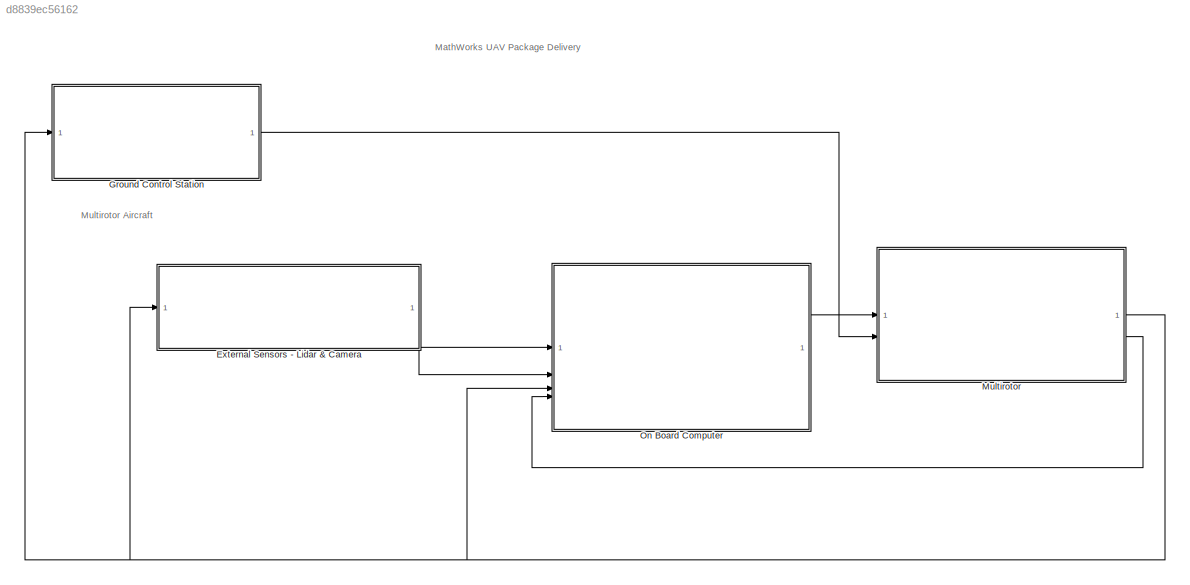
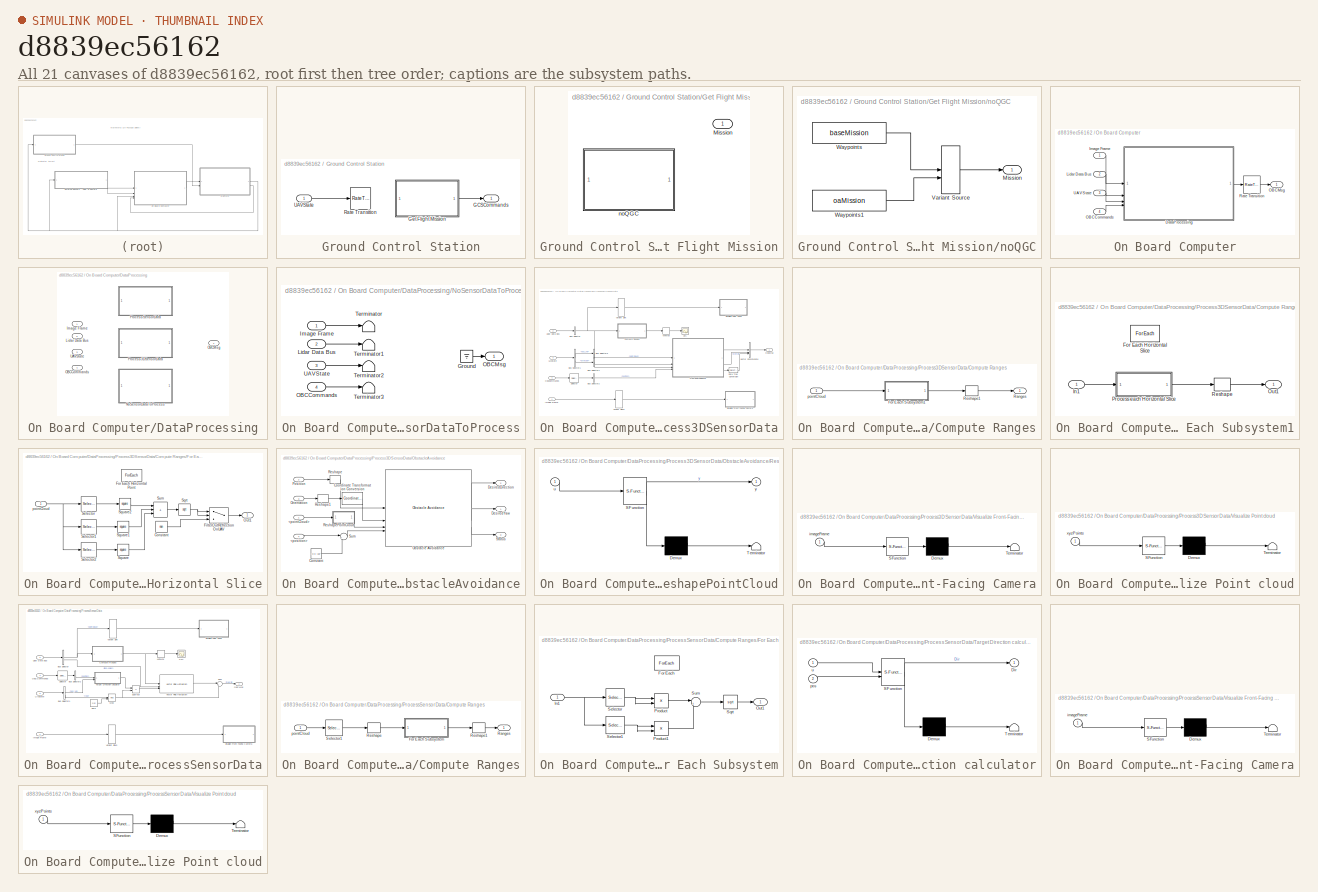
[diagram: thumbnail index - all 21 canvases of the model, root first then tree order]
MODEL slx_d8839ec56162
KIND model
CONFIG AbsTol = auto
CONFIG EnableMultiTasking = on
CONFIG FixedStep = .005
CONFIG MaxStep = auto
CONFIG MinStep = auto
CONFIG RelTol = 1e-3
CONFIG SampleTimeConstraint = Unconstrained
CONFIG SolverName = VariableStepAuto
CONFIG StartTime = 0.0
CONFIG StopTime = simTime
BLOCK [ModelReference] External Sensors - Lidar & Camera
  ModelNameDialog = photorealisticSimulationEngi.slx
  ModelReferenceVersion = 5.8
BLOCK [SubSystem] Ground Control Station
BLOCK [Outport] Ground Control Station/GCSCommands
BLOCK [SubSystem] Ground Control Station/Get Flight Mission
  Variant = on
BLOCK [Outport] Ground Control Station/Get Flight Mission/Mission 
BLOCK [SubSystem] Ground Control Station/Get Flight Mission/noQGC
  SystemSampleTime = UAVSampleTime*4
  TreatAsAtomicUnit = on
  VariantControl = useQGC==0
BLOCK [Outport] Ground Control Station/Get Flight Mission/noQGC/Mission
BLOCK [VariantSource] Ground Control Station/Get Flight Mission/noQGC/Variant Source
BLOCK [Constant] Ground Control Station/Get Flight Mission/noQGC/Waypoints
  OutDataTypeStr = Bus: uavPathManagerBus
  SampleTime = -1
  Value = baseMission
BLOCK [Constant] Ground Control Station/Get Flight Mission/noQGC/Waypoints1
  OutDataTypeStr = Bus: uavPathManagerBus
  SampleTime = -1
  Value = oaMission
BLOCK [RateTransition] Ground Control Station/Rate Transition
  OutPortSampleTime = UAVSampleTime*4
BLOCK [Inport] Ground Control Station/UAVState
  OutDataTypeStr = Bus: uavStateBus
BLOCK [ModelReference] Multirotor 
  ModelNameDialog = MultirotorModel
  ModelReferenceVersion = 6.7
  PortSchema = {"entries":[{"content":{"sides":[{"content":{"connectorIds":["In2","In1"]},"type":"ConnectorPlacement.EquallySpacedRectSide","uuid":"abf53b88-b4c0-4cc3-bb4c-819ba68ade90"},{"content":{"connectorIds":["Out1","Out2"],"side":"RIGHT"},"type":"ConnectorPlacement.EquallySpacedRectSide","uuid":"f1944fd3-3680-4558-bd6a-ffb0187ae725"},{"content":{"connectorIds":[],"side":"TOP"},"type":"ConnectorPlacement.E...<+255ch>
BLOCK [SubSystem] On Board Computer
  TreatAsAtomicUnit = on
BLOCK [SubSystem] On Board Computer/DataProcessing
  PropagateVariantConditions = on
  Variant = on
BLOCK [Inport] On Board Computer/DataProcessing/Image Frame
BLOCK [Inport] On Board Computer/DataProcessing/Lidar Data Bus 
  Port = 2
BLOCK [SubSystem] On Board Computer/DataProcessing/NoSensorDataToProcess
  VariantControl = isPhotoRealisticSim==0
BLOCK [Ground] On Board Computer/DataProcessing/NoSensorDataToProcess/Ground
BLOCK [Inport] On Board Computer/DataProcessing/NoSensorDataToProcess/Image Frame
BLOCK [Inport] On Board Computer/DataProcessing/NoSensorDataToProcess/Lidar Data Bus 
  Port = 2
BLOCK [Inport] On Board Computer/DataProcessing/NoSensorDataToProcess/OBCCommands
  Port = 4
BLOCK [Outport] On Board Computer/DataProcessing/NoSensorDataToProcess/OBCMsg
  OutDataTypeStr = single
  SampleTime = UAVSampleTime
BLOCK [Terminator] On Board Computer/DataProcessing/NoSensorDataToProcess/Terminator
BLOCK [Terminator] On Board Computer/DataProcessing/NoSensorDataToProcess/Terminator1
BLOCK [Terminator] On Board Computer/DataProcessing/NoSensorDataToProcess/Terminator2
BLOCK [Terminator] On Board Computer/DataProcessing/NoSensorDataToProcess/Terminator3
BLOCK [Inport] On Board Computer/DataProcessing/NoSensorDataToProcess/UAVState
  BusOutputAsStruct = on
  OutDataTypeStr = Bus: uavStateBus
  Port = 3
  SampleTime = UAVSampleTime
BLOCK [Inport] On Board Computer/DataProcessing/OBCCommands
  Port = 4
BLOCK [Outport] On Board Computer/DataProcessing/OBCMsg
  OutDataTypeStr = single
  SampleTime = 0.005
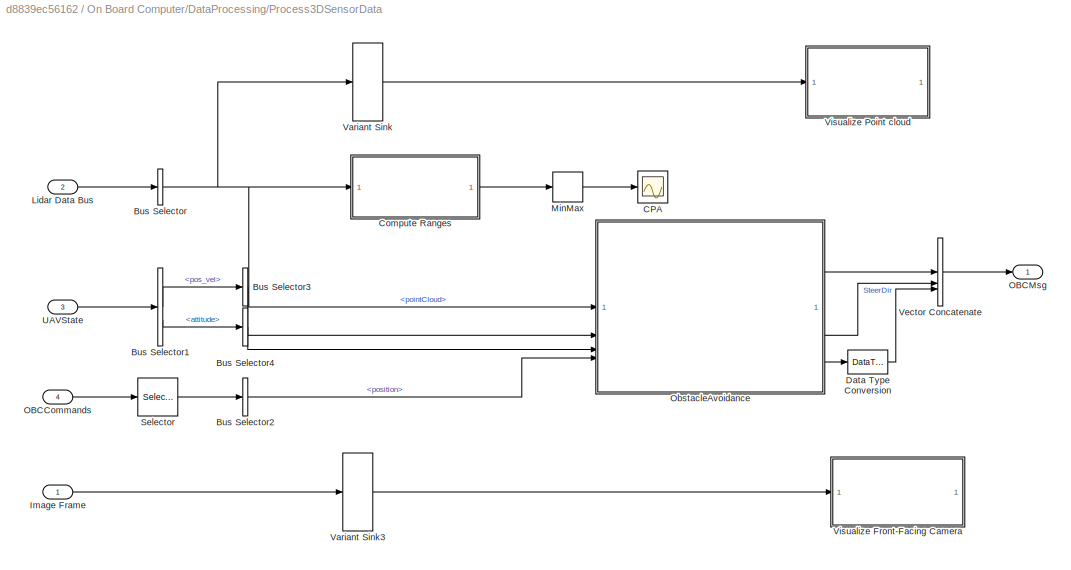
BLOCK [SubSystem] On Board Computer/DataProcessing/Process3DSensorData
  VariantControl = (isPhotoRealisticSim ==1 || isPhotoRealisticSim ==2) && guidanceType == 3
BLOCK [BusSelector] On Board Computer/DataProcessing/Process3DSensorData/Bus Selector
  OutputSignals = pointCloud
BLOCK [BusSelector] On Board Computer/DataProcessing/Process3DSensorData/Bus Selector1
  OutputSignals = pos_vel,attitude
BLOCK [BusSelector] On Board Computer/DataProcessing/Process3DSensorData/Bus Selector2
  OutputSignals = position
BLOCK [BusSelector] On Board Computer/DataProcessing/Process3DSensorData/Bus Selector3
  OutputAsBus = on
  OutputSignals = x,y,z
BLOCK [BusSelector] On Board Computer/DataProcessing/Process3DSensorData/Bus Selector4
  OutputAsBus = on
  OutputSignals = yaw,pitch,roll
BLOCK [Scope] On Board Computer/DataProcessing/Process3DSensorData/CPA
  Floating = off
  NumInputPorts = 1
  ScopeSpecificationString = Simulink.scopes.TimeScopeBlockCfg('CurrentConfiguration', extmgr.ConfigurationSet(extmgr.Configuration('Core','General UI',true),extmgr.Configuration('Core','Source UI',true),extmgr.Configuration('Sources','WiredSimulink',true),extmgr.Configuration('Visuals','Time Domain',true,'SerializedDisplays',{struct('MinYLimReal','-1.62863','MaxYLimReal','22.80719','YLabelReal','','MinYLimMag','0.00000','Max...<+1453ch>
BLOCK [SubSystem] On Board Computer/DataProcessing/Process3DSensorData/Compute Ranges
BLOCK [SubSystem] On Board Computer/DataProcessing/Process3DSensorData/Compute Ranges/For Each Subsystem1
  TreatAsAtomicUnit = on
BLOCK [ForEach] On Board Computer/DataProcessing/Process3DSensorData/Compute Ranges/For Each Subsystem1/For Each Horizontal Slice
  DisableCoverage = on
BLOCK [Inport] On Board Computer/DataProcessing/Process3DSensorData/Compute Ranges/For Each Subsystem1/In1
  Partition = on
  PartitionDimension = 1
  PartitionOffset = 0
  PartitionWidth = 1
BLOCK [Outport] On Board Computer/DataProcessing/Process3DSensorData/Compute Ranges/For Each Subsystem1/Out1
  ConcatenationDimension = 1
BLOCK [SubSystem] On Board Computer/DataProcessing/Process3DSensorData/Compute Ranges/For Each Subsystem1/Process each Horizontal Slice
  NameLocation = top
  TreatAsAtomicUnit = on
BLOCK [Constant] On Board Computer/DataProcessing/Process3DSensorData/Compute Ranges/For Each Subsystem1/Process each Horizontal Slice/Constant
  Value = nan
BLOCK [Switch] On Board Computer/DataProcessing/Process3DSensorData/Compute Ranges/For Each Subsystem1/Process each Horizontal Slice/FilterOutReflectionOnUAV
  Criteria = u2 > Threshold
  InputSameDT = off
  SaturateOnIntegerOverflow = off
BLOCK [ForEach] On Board Computer/DataProcessing/Process3DSensorData/Compute Ranges/For Each Subsystem1/Process each Horizontal Slice/For Each Horizontal Point
  DisableCoverage = on
BLOCK [Outport] On Board Computer/DataProcessing/Process3DSensorData/Compute Ranges/For Each Subsystem1/Process each Horizontal Slice/Out1
  ConcatenationDimension = 1
BLOCK [Selector] On Board Computer/DataProcessing/Process3DSensorData/Compute Ranges/For Each Subsystem1/Process each Horizontal Slice/Selector
  IndexOptions = Index vector (dialog),Index vector (dialog),Index vector (dialog)
  Indices = 1,1,1
  InputPortWidth = 3
  NumberOfDimensions = 3
  OutputSizes = 1,1,1
BLOCK [Selector] On Board Computer/DataProcessing/Process3DSensorData/Compute Ranges/For Each Subsystem1/Process each Horizontal Slice/Selector1
  IndexOptions = Index vector (dialog),Index vector (dialog),Index vector (dialog)
  Indices = 1,1,2
  InputPortWidth = 3
  NumberOfDimensions = 3
  OutputSizes = 1,1,1
BLOCK [Selector] On Board Computer/DataProcessing/Process3DSensorData/Compute Ranges/For Each Subsystem1/Process each Horizontal Slice/Selector2
  IndexOptions = Index vector (dialog),Index vector (dialog),Index vector (dialog)
  Indices = 1,1,3
  InputPortWidth = 3
  NumberOfDimensions = 3
  OutputSizes = 1,1,1
BLOCK [Sqrt] On Board Computer/DataProcessing/Process3DSensorData/Compute Ranges/For Each Subsystem1/Process each Horizontal Slice/Sqrt
  AlgorithmType = Newton-Raphson
  IntermediateResultsDataTypeStr = single
  OutDataTypeStr = single
  OutputSignalType = real
BLOCK [Math] On Board Computer/DataProcessing/Process3DSensorData/Compute Ranges/For Each Subsystem1/Process each Horizontal Slice/Square
  Operator = square
BLOCK [Math] On Board Computer/DataProcessing/Process3DSensorData/Compute Ranges/For Each Subsystem1/Process each Horizontal Slice/Square1
  Operator = square
BLOCK [Math] On Board Computer/DataProcessing/Process3DSensorData/Compute Ranges/For Each Subsystem1/Process each Horizontal Slice/Square2
  Operator = square
BLOCK [Sum] On Board Computer/DataProcessing/Process3DSensorData/Compute Ranges/For Each Subsystem1/Process each Horizontal Slice/Sum
  IconShape = rectangular
  Inputs = +++
BLOCK [Inport] On Board Computer/DataProcessing/Process3DSensorData/Compute Ranges/For Each Subsystem1/Process each Horizontal Slice/pointCloud
  Partition = on
  PartitionDimension = 2
  PartitionOffset = 0
  PartitionWidth = 1
BLOCK [Reshape] On Board Computer/DataProcessing/Process3DSensorData/Compute Ranges/For Each Subsystem1/Reshape
BLOCK [Outport] On Board Computer/DataProcessing/Process3DSensorData/Compute Ranges/Ranges
BLOCK [Reshape] On Board Computer/DataProcessing/Process3DSensorData/Compute Ranges/Reshape1
  OutputDimensions = 1083
BLOCK [Inport] On Board Computer/DataProcessing/Process3DSensorData/Compute Ranges/pointCloud
BLOCK [DataTypeConversion] On Board Computer/DataProcessing/Process3DSensorData/Data Type Conversion
  OutDataTypeStr = single
  RndMeth = Floor
  SaturateOnIntegerOverflow = off
BLOCK [Inport] On Board Computer/DataProcessing/Process3DSensorData/Image Frame
BLOCK [Inport] On Board Computer/DataProcessing/Process3DSensorData/Lidar Data Bus 
  Port = 2
  SampleTime = 0.5
BLOCK [MinMax] On Board Computer/DataProcessing/Process3DSensorData/MinMax
BLOCK [Inport] On Board Computer/DataProcessing/Process3DSensorData/OBCCommands
  Port = 4
  SampleTime = 0.5
BLOCK [Outport] On Board Computer/DataProcessing/Process3DSensorData/OBCMsg
  OutDataTypeStr = single
  SampleTime = 0.005
BLOCK [SubSystem] On Board Computer/DataProcessing/Process3DSensorData/ObstacleAvoidance
BLOCK [Inport] On Board Computer/DataProcessing/Process3DSensorData/ObstacleAvoidance/<pointCloud>
BLOCK [Inport] On Board Computer/DataProcessing/Process3DSensorData/ObstacleAvoidance/<position>
  Port = 4
BLOCK [Constant] On Board Computer/DataProcessing/Process3DSensorData/ObstacleAvoidance/Constant
  OutDataTypeStr = single
  Value = [0 0 -10]'
  VectorParams1D = off
BLOCK [Reference] On Board Computer/DataProcessing/Process3DSensorData/ObstacleAvoidance/Coordinate Transformation Conversion  REF=robotcorelib/Coordinate Transformation Conversion
  SourceBlock = robotcorelib/Coordinate Transformation Conversion
  SourceType = robotics.slcore.internal.block.CoordinateTransformationConversion
BLOCK [Outport] On Board Computer/DataProcessing/Process3DSensorData/ObstacleAvoidance/DesiredDirection
  Port = 2
BLOCK [Outport] On Board Computer/DataProcessing/Process3DSensorData/ObstacleAvoidance/DesiredYaw
BLOCK [Reference] On Board Computer/DataProcessing/Process3DSensorData/ObstacleAvoidance/Obstacle Avoidance  REF=uavalgslib/Obstacle Avoidance
  SourceBlock = uavalgslib/Obstacle Avoidance
  SourceType = uav.sluav.internal.system.ObstacleAvoidance
BLOCK [Inport] On Board Computer/DataProcessing/Process3DSensorData/ObstacleAvoidance/Orientation
  Port = 3
BLOCK [Inport] On Board Computer/DataProcessing/Process3DSensorData/ObstacleAvoidance/Position
  Port = 2
BLOCK [Reshape] On Board Computer/DataProcessing/Process3DSensorData/ObstacleAvoidance/Reshape
  OutputDimensionality = Column vector (2-D)
BLOCK [Reshape] On Board Computer/DataProcessing/Process3DSensorData/ObstacleAvoidance/Reshape1
  OutputDimensionality = Column vector (2-D)
BLOCK [SubSystem] On Board Computer/DataProcessing/Process3DSensorData/ObstacleAvoidance/ReshapePointCloud
  ErrorFcn = Stateflow.Translate.translate
  PermitHierarchicalResolution = ExplicitOnly
  SFBlockType = MATLAB Function
  TreatAsAtomicUnit = on
BLOCK [Demux] On Board Computer/DataProcessing/Process3DSensorData/ObstacleAvoidance/ReshapePointCloud/ Demux 
  Outputs = 1
BLOCK [S-Function] On Board Computer/DataProcessing/Process3DSensorData/ObstacleAvoidance/ReshapePointCloud/ SFunction 
  EnableBusSupport = on
  FunctionName = sf_sfun
  PortCounts = [1 2]
  SFcnIsStateOwnerBlock = off
  SFunctionDeploymentMode = off
  Tag = Stateflow S-Function 3
BLOCK [Terminator] On Board Computer/DataProcessing/Process3DSensorData/ObstacleAvoidance/ReshapePointCloud/ Terminator 
BLOCK [Inport] On Board Computer/DataProcessing/Process3DSensorData/ObstacleAvoidance/ReshapePointCloud/u
BLOCK [Outport] On Board Computer/DataProcessing/Process3DSensorData/ObstacleAvoidance/ReshapePointCloud/y
BLOCK [Outport] On Board Computer/DataProcessing/Process3DSensorData/ObstacleAvoidance/Status
  Port = 3
BLOCK [Sum] On Board Computer/DataProcessing/Process3DSensorData/ObstacleAvoidance/Sum
  Inputs = |++
BLOCK [Selector] On Board Computer/DataProcessing/Process3DSensorData/Selector
  IndexOptions = Index vector (dialog)
  Indices = [2]
  InputPortWidth = 2
  OutputSizes = 1
BLOCK [Inport] On Board Computer/DataProcessing/Process3DSensorData/UAVState
  BusOutputAsStruct = on
  OutDataTypeStr = Bus: uavStateBus
  Port = 3
  SampleTime = 0.5
BLOCK [VariantSink] On Board Computer/DataProcessing/Process3DSensorData/Variant Sink
  AllowZeroVariantControls = on
BLOCK [VariantSink] On Board Computer/DataProcessing/Process3DSensorData/Variant Sink3
  AllowZeroVariantControls = on
BLOCK [Concatenate] On Board Computer/DataProcessing/Process3DSensorData/Vector Concatenate
  NumInputs = 3
BLOCK [SubSystem] On Board Computer/DataProcessing/Process3DSensorData/Visualize Front-Facing Camera
  ErrorFcn = Stateflow.Translate.translate
  PermitHierarchicalResolution = ExplicitOnly
  SFBlockType = MATLAB Function
  TreatAsAtomicUnit = on
BLOCK [Demux] On Board Computer/DataProcessing/Process3DSensorData/Visualize Front-Facing Camera/ Demux 
  Outputs = 1
BLOCK [S-Function] On Board Computer/DataProcessing/Process3DSensorData/Visualize Front-Facing Camera/ SFunction 
  EnableBusSupport = on
  FunctionName = sf_sfun
  PortCounts = [1 1]
  SFcnIsStateOwnerBlock = off
  SFunctionDeploymentMode = off
  Tag = Stateflow S-Function 4
BLOCK [Terminator] On Board Computer/DataProcessing/Process3DSensorData/Visualize Front-Facing Camera/ Terminator 
BLOCK [Inport] On Board Computer/DataProcessing/Process3DSensorData/Visualize Front-Facing Camera/imageFrame
BLOCK [SubSystem] On Board Computer/DataProcessing/Process3DSensorData/Visualize Point cloud
  ErrorFcn = Stateflow.Translate.translate
  PermitHierarchicalResolution = ExplicitOnly
  SFBlockType = MATLAB Function
  StopFcn = playerFigure = findall(groot,'type','figure','name','Point Cloud Player');\n\nif ~isempty(playerFigure)\n    playerFigure = playerFigure(end);\n    if isvalid(playerFigure)\n        close(playerFigure);\n    end\nend
  TreatAsAtomicUnit = on
BLOCK [Demux] On Board Computer/DataProcessing/Process3DSensorData/Visualize Point cloud/ Demux 
  Outputs = 1
BLOCK [S-Function] On Board Computer/DataProcessing/Process3DSensorData/Visualize Point cloud/ SFunction 
  EnableBusSupport = on
  FunctionName = sf_sfun
  PortCounts = [1 1]
  SFcnIsStateOwnerBlock = off
  SFunctionDeploymentMode = off
  Tag = Stateflow S-Function 5
BLOCK [Terminator] On Board Computer/DataProcessing/Process3DSensorData/Visualize Point cloud/ Terminator 
BLOCK [Inport] On Board Computer/DataProcessing/Process3DSensorData/Visualize Point cloud/xyzPoints
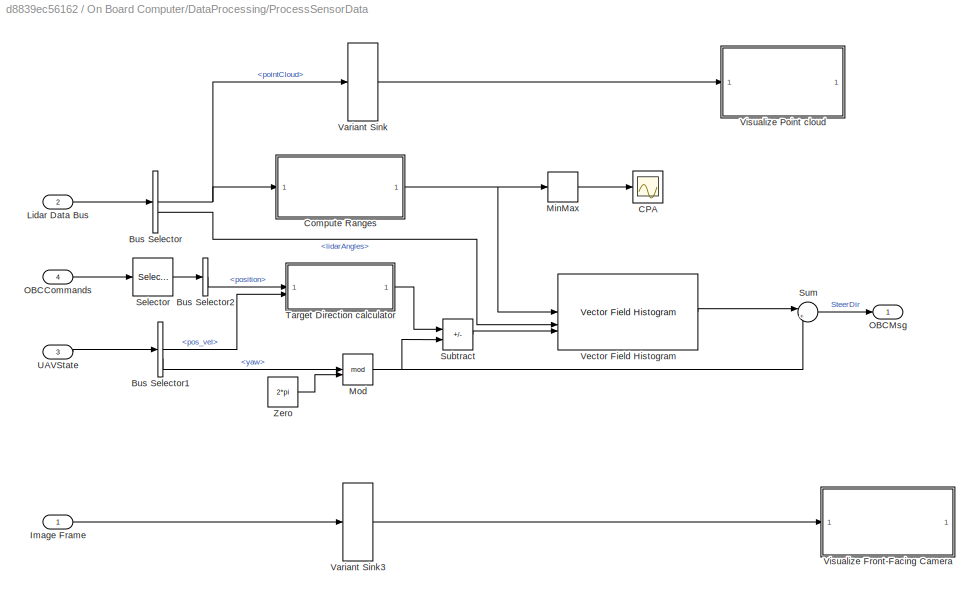
BLOCK [SubSystem] On Board Computer/DataProcessing/ProcessSensorData
  VariantControl = (isPhotoRealisticSim ==1 || isPhotoRealisticSim ==2)  && guidanceType ~= 3
BLOCK [BusSelector] On Board Computer/DataProcessing/ProcessSensorData/Bus Selector
  OutputSignals = pointCloud,lidarAngles
BLOCK [BusSelector] On Board Computer/DataProcessing/ProcessSensorData/Bus Selector1
  OutputSignals = pos_vel,attitude.yaw
BLOCK [BusSelector] On Board Computer/DataProcessing/ProcessSensorData/Bus Selector2
  OutputSignals = position
BLOCK [Scope] On Board Computer/DataProcessing/ProcessSensorData/CPA
  Floating = off
  NumInputPorts = 1
  ScopeSpecificationString = Simulink.scopes.TimeScopeBlockCfg('CurrentConfiguration', extmgr.ConfigurationSet(extmgr.Configuration('Core','General UI',true),extmgr.Configuration('Core','Source UI',true),extmgr.Configuration('Sources','WiredSimulink',true,'DataLoggingVariableName','ScopeData1'),extmgr.Configuration('Visuals','Time Domain',true,'SerializedDisplays',{struct('MinYLimReal','3.83822','MaxYLimReal','27.99117','YLab...<+1490ch>
BLOCK [SubSystem] On Board Computer/DataProcessing/ProcessSensorData/Compute Ranges
BLOCK [SubSystem] On Board Computer/DataProcessing/ProcessSensorData/Compute Ranges/For Each Subsystem
  TreatAsAtomicUnit = on
BLOCK [ForEach] On Board Computer/DataProcessing/ProcessSensorData/Compute Ranges/For Each Subsystem/For Each
  DisableCoverage = on
BLOCK [Inport] On Board Computer/DataProcessing/ProcessSensorData/Compute Ranges/For Each Subsystem/In1
  Partition = on
  PartitionDimension = 1
  PartitionOffset = 0
  PartitionWidth = 1
BLOCK [Outport] On Board Computer/DataProcessing/ProcessSensorData/Compute Ranges/For Each Subsystem/Out1
  ConcatenationDimension = 1
BLOCK [Product] On Board Computer/DataProcessing/ProcessSensorData/Compute Ranges/For Each Subsystem/Product
BLOCK [Product] On Board Computer/DataProcessing/ProcessSensorData/Compute Ranges/For Each Subsystem/Product1
BLOCK [Selector] On Board Computer/DataProcessing/ProcessSensorData/Compute Ranges/For Each Subsystem/Selector
  IndexOptions = Index vector (dialog)
  Indices = [1]
  InputPortWidth = 3
  OutputSizes = 1
BLOCK [Selector] On Board Computer/DataProcessing/ProcessSensorData/Compute Ranges/For Each Subsystem/Selector1
  IndexOptions = Index vector (dialog)
  Indices = [2]
  InputPortWidth = 3
  OutputSizes = 1
BLOCK [Sqrt] On Board Computer/DataProcessing/ProcessSensorData/Compute Ranges/For Each Subsystem/Sqrt
  AlgorithmType = Newton-Raphson
  IntermediateResultsDataTypeStr = single
  OutDataTypeStr = single
  OutputSignalType = real
BLOCK [Sum] On Board Computer/DataProcessing/ProcessSensorData/Compute Ranges/For Each Subsystem/Sum
  Inputs = |++
BLOCK [Outport] On Board Computer/DataProcessing/ProcessSensorData/Compute Ranges/Ranges
BLOCK [Reshape] On Board Computer/DataProcessing/ProcessSensorData/Compute Ranges/Reshape
  OutputDimensionality = Customize
  OutputDimensions = [1083 3]
BLOCK [Reshape] On Board Computer/DataProcessing/ProcessSensorData/Compute Ranges/Reshape1
  OutputDimensions = 1083
BLOCK [Selector] On Board Computer/DataProcessing/ProcessSensorData/Compute Ranges/Selector1
  IndexOptions = Index vector (dialog),Select all,Select all
  Indices = 16,1,1
  InputPortWidth = 3
  NumberOfDimensions = 3
  OutputSizes = 1,1,1
BLOCK [Inport] On Board Computer/DataProcessing/ProcessSensorData/Compute Ranges/pointCloud
BLOCK [Inport] On Board Computer/DataProcessing/ProcessSensorData/Image Frame
BLOCK [Inport] On Board Computer/DataProcessing/ProcessSensorData/Lidar Data Bus 
  Port = 2
  SampleTime = UAVSampleTime*10
BLOCK [MinMax] On Board Computer/DataProcessing/ProcessSensorData/MinMax
BLOCK [Math] On Board Computer/DataProcessing/ProcessSensorData/Mod
  Operator = mod
BLOCK [Inport] On Board Computer/DataProcessing/ProcessSensorData/OBCCommands
  Port = 4
  SampleTime = UAVSampleTime*10
BLOCK [Outport] On Board Computer/DataProcessing/ProcessSensorData/OBCMsg
  OutDataTypeStr = single
  SampleTime = 0.005
BLOCK [Selector] On Board Computer/DataProcessing/ProcessSensorData/Selector
  IndexOptions = Index vector (dialog)
  Indices = [2]
  InputPortWidth = 2
  OutputSizes = 1
BLOCK [Sum] On Board Computer/DataProcessing/ProcessSensorData/Subtract
  IconShape = rectangular
  Inputs = +-
BLOCK [Sum] On Board Computer/DataProcessing/ProcessSensorData/Sum
  AccumDataTypeStr = single
  Inputs = |++
BLOCK [SubSystem] On Board Computer/DataProcessing/ProcessSensorData/Target Direction calculator
  ErrorFcn = Stateflow.Translate.translate
  PermitHierarchicalResolution = ExplicitOnly
  SFBlockType = MATLAB Function
  TreatAsAtomicUnit = on
BLOCK [Demux] On Board Computer/DataProcessing/ProcessSensorData/Target Direction calculator/ Demux 
  Outputs = 1
BLOCK [S-Function] On Board Computer/DataProcessing/ProcessSensorData/Target Direction calculator/ SFunction 
  EnableBusSupport = on
  FunctionName = sf_sfun
  PortCounts = [2 2]
  SFcnIsStateOwnerBlock = off
  SFunctionDeploymentMode = off
  Tag = Stateflow S-Function 8
BLOCK [Terminator] On Board Computer/DataProcessing/ProcessSensorData/Target Direction calculator/ Terminator 
BLOCK [Outport] On Board Computer/DataProcessing/ProcessSensorData/Target Direction calculator/Dir
BLOCK [Inport] On Board Computer/DataProcessing/ProcessSensorData/Target Direction calculator/pos
  Port = 2
BLOCK [Inport] On Board Computer/DataProcessing/ProcessSensorData/Target Direction calculator/u
BLOCK [Inport] On Board Computer/DataProcessing/ProcessSensorData/UAVState
  BusOutputAsStruct = on
  OutDataTypeStr = Bus: uavStateBus
  Port = 3
  SampleTime = UAVSampleTime*10
BLOCK [VariantSink] On Board Computer/DataProcessing/ProcessSensorData/Variant Sink
  AllowZeroVariantControls = on
BLOCK [VariantSink] On Board Computer/DataProcessing/ProcessSensorData/Variant Sink3
  AllowZeroVariantControls = on
BLOCK [Reference] On Board Computer/DataProcessing/ProcessSensorData/Vector Field Histogram  REF=robotalgslib/Vector Field Histogram
  SourceBlock = robotalgslib/Vector Field Histogram
  SourceType = nav.slalgs.internal.VectorFieldHistogram
BLOCK [SubSystem] On Board Computer/DataProcessing/ProcessSensorData/Visualize Front-Facing Camera
  ErrorFcn = Stateflow.Translate.translate
  PermitHierarchicalResolution = ExplicitOnly
  SFBlockType = MATLAB Function
  TreatAsAtomicUnit = on
BLOCK [Demux] On Board Computer/DataProcessing/ProcessSensorData/Visualize Front-Facing Camera/ Demux 
  Outputs = 1
BLOCK [S-Function] On Board Computer/DataProcessing/ProcessSensorData/Visualize Front-Facing Camera/ SFunction 
  EnableBusSupport = on
  FunctionName = sf_sfun
  PortCounts = [1 1]
  SFcnIsStateOwnerBlock = off
  SFunctionDeploymentMode = off
  Tag = Stateflow S-Function 2
BLOCK [Terminator] On Board Computer/DataProcessing/ProcessSensorData/Visualize Front-Facing Camera/ Terminator 
BLOCK [Inport] On Board Computer/DataProcessing/ProcessSensorData/Visualize Front-Facing Camera/imageFrame
BLOCK [SubSystem] On Board Computer/DataProcessing/ProcessSensorData/Visualize Point cloud
  ErrorFcn = Stateflow.Translate.translate
  PermitHierarchicalResolution = ExplicitOnly
  SFBlockType = MATLAB Function
  StopFcn = playerFigure = findall(groot,'type','figure','name','Point Cloud Player');\n\nif ~isempty(playerFigure)\n    playerFigure = playerFigure(end);\n    if isvalid(playerFigure)\n        close(playerFigure);\n    end\nend
  TreatAsAtomicUnit = on
BLOCK [Demux] On Board Computer/DataProcessing/ProcessSensorData/Visualize Point cloud/ Demux 
  Outputs = 1
BLOCK [S-Function] On Board Computer/DataProcessing/ProcessSensorData/Visualize Point cloud/ SFunction 
  EnableBusSupport = on
  FunctionName = sf_sfun
  PortCounts = [1 1]
  SFcnIsStateOwnerBlock = off
  SFunctionDeploymentMode = off
  Tag = Stateflow S-Function 10
BLOCK [Terminator] On Board Computer/DataProcessing/ProcessSensorData/Visualize Point cloud/ Terminator 
BLOCK [Inport] On Board Computer/DataProcessing/ProcessSensorData/Visualize Point cloud/xyzPoints
BLOCK [Constant] On Board Computer/DataProcessing/ProcessSensorData/Zero
  OutDataTypeStr = Inherit: Inherit via back propagation
  Value = 2*pi
BLOCK [Inport] On Board Computer/DataProcessing/UAVState
  BusOutputAsStruct = on
  NameLocation = top
  OutDataTypeStr = Bus: uavStateBus
  Port = 3
  SampleTime = 0.005
BLOCK [Inport] On Board Computer/Image Frame
BLOCK [Inport] On Board Computer/Lidar Data Bus 
  Port = 2
BLOCK [Inport] On Board Computer/OBCCommands
  Port = 4
BLOCK [Outport] On Board Computer/OBCMsg
  OutDataTypeStr = single
BLOCK [RateTransition] On Board Computer/Rate Transition
  OutPortSampleTime = UAVSampleTime*4
BLOCK [Inport] On Board Computer/UAVState
  BusOutputAsStruct = on
  OutDataTypeStr = Bus: uavStateBus
  Port = 3
  SampleTime = UAVSampleTime
ANNOTATION (root): MathWorks UAV Package Delivery
ANNOTATION (root): Multirotor Aircraft
LINE External Sensors - Lidar & Camera:1 -> On Board Computer:1
LINE External Sensors - Lidar & Camera:2 -> On Board Computer:2
LINE Ground Control Station/Get Flight Mission/noQGC/Variant Source:1 -> Ground Control Station/Get Flight Mission/noQGC/Mission:1
LINE Ground Control Station/Get Flight Mission/noQGC/Waypoints1:1 -> Ground Control Station/Get Flight Mission/noQGC/Variant Source:2
LINE Ground Control Station/Get Flight Mission/noQGC/Waypoints:1 -> Ground Control Station/Get Flight Mission/noQGC/Variant Source:1
LINE Ground Control Station/Get Flight Mission:1 -> Ground Control Station/GCSCommands:1
LINE Ground Control Station/UAVState:1 -> Ground Control Station/Rate Transition:1
LINE Ground Control Station:1 -> Multirotor :2
NET Multirotor :1 -> External Sensors - Lidar & Camera:1, Ground Control Station:1, On Board Computer:3
LINE Multirotor :2 -> On Board Computer:4
LINE On Board Computer/DataProcessing/NoSensorDataToProcess/Ground:1 -> On Board Computer/DataProcessing/NoSensorDataToProcess/OBCMsg:1
LINE On Board Computer/DataProcessing/NoSensorDataToProcess/Image Frame:1 -> On Board Computer/DataProcessing/NoSensorDataToProcess/Terminator:1
LINE On Board Computer/DataProcessing/NoSensorDataToProcess/Lidar Data Bus :1 -> On Board Computer/DataProcessing/NoSensorDataToProcess/Terminator1:1
LINE On Board Computer/DataProcessing/NoSensorDataToProcess/OBCCommands:1 -> On Board Computer/DataProcessing/NoSensorDataToProcess/Terminator3:1
LINE On Board Computer/DataProcessing/NoSensorDataToProcess/UAVState:1 -> On Board Computer/DataProcessing/NoSensorDataToProcess/Terminator2:1
LINE On Board Computer/DataProcessing/Process3DSensorData/Bus Selector1:1 -> On Board Computer/DataProcessing/Process3DSensorData/Bus Selector3:1
LINE On Board Computer/DataProcessing/Process3DSensorData/Bus Selector1:2 -> On Board Computer/DataProcessing/Process3DSensorData/Bus Selector4:1
LINE On Board Computer/DataProcessing/Process3DSensorData/Bus Selector2:1 -> On Board Computer/DataProcessing/Process3DSensorData/ObstacleAvoidance:4
LINE On Board Computer/DataProcessing/Process3DSensorData/Bus Selector3:1 -> On Board Computer/DataProcessing/Process3DSensorData/ObstacleAvoidance:2
LINE On Board Computer/DataProcessing/Process3DSensorData/Bus Selector4:1 -> On Board Computer/DataProcessing/Process3DSensorData/ObstacleAvoidance:3
NET On Board Computer/DataProcessing/Process3DSensorData/Bus Selector:1 -> On Board Computer/DataProcessing/Process3DSensorData/Compute Ranges:1, On Board Computer/DataProcessing/Process3DSensorData/ObstacleAvoidance:1, On Board Computer/DataProcessing/Process3DSensorData/Variant Sink:1
LINE On Board Computer/DataProcessing/Process3DSensorData/Compute Ranges/For Each Subsystem1/In1:1 -> On Board Computer/DataProcessing/Process3DSensorData/Compute Ranges/For Each Subsystem1/Process each Horizontal Slice:1
LINE On Board Computer/DataProcessing/Process3DSensorData/Compute Ranges/For Each Subsystem1/Process each Horizontal Slice/Constant:1 -> On Board Computer/DataProcessing/Process3DSensorData/Compute Ranges/For Each Subsystem1/Process each Horizontal Slice/FilterOutReflectionOnUAV:3
LINE On Board Computer/DataProcessing/Process3DSensorData/Compute Ranges/For Each Subsystem1/Process each Horizontal Slice/FilterOutReflectionOnUAV:1 -> On Board Computer/DataProcessing/Process3DSensorData/Compute Ranges/For Each Subsystem1/Process each Horizontal Slice/Out1:1
LINE On Board Computer/DataProcessing/Process3DSensorData/Compute Ranges/For Each Subsystem1/Process each Horizontal Slice/Selector1:1 -> On Board Computer/DataProcessing/Process3DSensorData/Compute Ranges/For Each Subsystem1/Process each Horizontal Slice/Square1:1
LINE On Board Computer/DataProcessing/Process3DSensorData/Compute Ranges/For Each Subsystem1/Process each Horizontal Slice/Selector2:1 -> On Board Computer/DataProcessing/Process3DSensorData/Compute Ranges/For Each Subsystem1/Process each Horizontal Slice/Square:1
LINE On Board Computer/DataProcessing/Process3DSensorData/Compute Ranges/For Each Subsystem1/Process each Horizontal Slice/Selector:1 -> On Board Computer/DataProcessing/Process3DSensorData/Compute Ranges/For Each Subsystem1/Process each Horizontal Slice/Square2:1
NET On Board Computer/DataProcessing/Process3DSensorData/Compute Ranges/For Each Subsystem1/Process each Horizontal Slice/Sqrt:1 -> On Board Computer/DataProcessing/Process3DSensorData/Compute Ranges/For Each Subsystem1/Process each Horizontal Slice/FilterOutReflectionOnUAV:1, On Board Computer/DataProcessing/Process3DSensorData/Compute Ranges/For Each Subsystem1/Process each Horizontal Slice/FilterOutReflectionOnUAV:2
LINE On Board Computer/DataProcessing/Process3DSensorData/Compute Ranges/For Each Subsystem1/Process each Horizontal Slice/Square1:1 -> On Board Computer/DataProcessing/Process3DSensorData/Compute Ranges/For Each Subsystem1/Process each Horizontal Slice/Sum:2
LINE On Board Computer/DataProcessing/Process3DSensorData/Compute Ranges/For Each Subsystem1/Process each Horizontal Slice/Square2:1 -> On Board Computer/DataProcessing/Process3DSensorData/Compute Ranges/For Each Subsystem1/Process each Horizontal Slice/Sum:1
LINE On Board Computer/DataProcessing/Process3DSensorData/Compute Ranges/For Each Subsystem1/Process each Horizontal Slice/Square:1 -> On Board Computer/DataProcessing/Process3DSensorData/Compute Ranges/For Each Subsystem1/Process each Horizontal Slice/Sum:3
LINE On Board Computer/DataProcessing/Process3DSensorData/Compute Ranges/For Each Subsystem1/Process each Horizontal Slice/Sum:1 -> On Board Computer/DataProcessing/Process3DSensorData/Compute Ranges/For Each Subsystem1/Process each Horizontal Slice/Sqrt:1
NET On Board Computer/DataProcessing/Process3DSensorData/Compute Ranges/For Each Subsystem1/Process each Horizontal Slice/pointCloud:1 -> On Board Computer/DataProcessing/Process3DSensorData/Compute Ranges/For Each Subsystem1/Process each Horizontal Slice/Selector1:1, On Board Computer/DataProcessing/Process3DSensorData/Compute Ranges/For Each Subsystem1/Process each Horizontal Slice/Selector2:1, On Board Computer/DataProcessing/Process3DSensorData/Compute Ranges/For Each Subsystem1/Process each Horizontal Slice/Selector:1
LINE On Board Computer/DataProcessing/Process3DSensorData/Compute Ranges/For Each Subsystem1/Process each Horizontal Slice:1 -> On Board Computer/DataProcessing/Process3DSensorData/Compute Ranges/For Each Subsystem1/Reshape:1
LINE On Board Computer/DataProcessing/Process3DSensorData/Compute Ranges/For Each Subsystem1/Reshape:1 -> On Board Computer/DataProcessing/Process3DSensorData/Compute Ranges/For Each Subsystem1/Out1:1
LINE On Board Computer/DataProcessing/Process3DSensorData/Compute Ranges/For Each Subsystem1:1 -> On Board Computer/DataProcessing/Process3DSensorData/Compute Ranges/Reshape1:1
LINE On Board Computer/DataProcessing/Process3DSensorData/Compute Ranges/Reshape1:1 -> On Board Computer/DataProcessing/Process3DSensorData/Compute Ranges/Ranges:1
LINE On Board Computer/DataProcessing/Process3DSensorData/Compute Ranges/pointCloud:1 -> On Board Computer/DataProcessing/Process3DSensorData/Compute Ranges/For Each Subsystem1:1
LINE On Board Computer/DataProcessing/Process3DSensorData/Compute Ranges:1 -> On Board Computer/DataProcessing/Process3DSensorData/MinMax:1
LINE On Board Computer/DataProcessing/Process3DSensorData/Data Type Conversion:1 -> On Board Computer/DataProcessing/Process3DSensorData/Vector Concatenate:3
LINE On Board Computer/DataProcessing/Process3DSensorData/Image Frame:1 -> On Board Computer/DataProcessing/Process3DSensorData/Variant Sink3:1
LINE On Board Computer/DataProcessing/Process3DSensorData/Lidar Data Bus :1 -> On Board Computer/DataProcessing/Process3DSensorData/Bus Selector:1
LINE On Board Computer/DataProcessing/Process3DSensorData/MinMax:1 -> On Board Computer/DataProcessing/Process3DSensorData/CPA:1
LINE On Board Computer/DataProcessing/Process3DSensorData/OBCCommands:1 -> On Board Computer/DataProcessing/Process3DSensorData/Selector:1
LINE On Board Computer/DataProcessing/Process3DSensorData/ObstacleAvoidance/<pointCloud>:1 -> On Board Computer/DataProcessing/Process3DSensorData/ObstacleAvoidance/ReshapePointCloud:1
LINE On Board Computer/DataProcessing/Process3DSensorData/ObstacleAvoidance/<position>:1 -> On Board Computer/DataProcessing/Process3DSensorData/ObstacleAvoidance/Sum:1
LINE On Board Computer/DataProcessing/Process3DSensorData/ObstacleAvoidance/Constant:1 -> On Board Computer/DataProcessing/Process3DSensorData/ObstacleAvoidance/Sum:2
LINE On Board Computer/DataProcessing/Process3DSensorData/ObstacleAvoidance/Coordinate Transformation Conversion:1 -> On Board Computer/DataProcessing/Process3DSensorData/ObstacleAvoidance/Obstacle Avoidance:2
LINE On Board Computer/DataProcessing/Process3DSensorData/ObstacleAvoidance/Obstacle Avoidance:1 -> On Board Computer/DataProcessing/Process3DSensorData/ObstacleAvoidance/DesiredDirection:1
LINE On Board Computer/DataProcessing/Process3DSensorData/ObstacleAvoidance/Obstacle Avoidance:2 -> On Board Computer/DataProcessing/Process3DSensorData/ObstacleAvoidance/DesiredYaw:1
LINE On Board Computer/DataProcessing/Process3DSensorData/ObstacleAvoidance/Obstacle Avoidance:3 -> On Board Computer/DataProcessing/Process3DSensorData/ObstacleAvoidance/Status:1
LINE On Board Computer/DataProcessing/Process3DSensorData/ObstacleAvoidance/Orientation:1 -> On Board Computer/DataProcessing/Process3DSensorData/ObstacleAvoidance/Reshape1:1
LINE On Board Computer/DataProcessing/Process3DSensorData/ObstacleAvoidance/Position:1 -> On Board Computer/DataProcessing/Process3DSensorData/ObstacleAvoidance/Reshape:1
LINE On Board Computer/DataProcessing/Process3DSensorData/ObstacleAvoidance/Reshape1:1 -> On Board Computer/DataProcessing/Process3DSensorData/ObstacleAvoidance/Coordinate Transformation Conversion:1
LINE On Board Computer/DataProcessing/Process3DSensorData/ObstacleAvoidance/Reshape:1 -> On Board Computer/DataProcessing/Process3DSensorData/ObstacleAvoidance/Obstacle Avoidance:1
LINE On Board Computer/DataProcessing/Process3DSensorData/ObstacleAvoidance/ReshapePointCloud:1 -> On Board Computer/DataProcessing/Process3DSensorData/ObstacleAvoidance/Obstacle Avoidance:3
LINE On Board Computer/DataProcessing/Process3DSensorData/ObstacleAvoidance/Sum:1 -> On Board Computer/DataProcessing/Process3DSensorData/ObstacleAvoidance/Obstacle Avoidance:4
LINE On Board Computer/DataProcessing/Process3DSensorData/ObstacleAvoidance:1 -> On Board Computer/DataProcessing/Process3DSensorData/Vector Concatenate:1
LINE On Board Computer/DataProcessing/Process3DSensorData/ObstacleAvoidance:2 -> On Board Computer/DataProcessing/Process3DSensorData/Vector Concatenate:2
LINE On Board Computer/DataProcessing/Process3DSensorData/ObstacleAvoidance:3 -> On Board Computer/DataProcessing/Process3DSensorData/Data Type Conversion:1
LINE On Board Computer/DataProcessing/Process3DSensorData/Selector:1 -> On Board Computer/DataProcessing/Process3DSensorData/Bus Selector2:1
LINE On Board Computer/DataProcessing/Process3DSensorData/UAVState:1 -> On Board Computer/DataProcessing/Process3DSensorData/Bus Selector1:1
LINE On Board Computer/DataProcessing/Process3DSensorData/Variant Sink3:1 -> On Board Computer/DataProcessing/Process3DSensorData/Visualize Front-Facing Camera:1
LINE On Board Computer/DataProcessing/Process3DSensorData/Variant Sink:1 -> On Board Computer/DataProcessing/Process3DSensorData/Visualize Point cloud:1
LINE On Board Computer/DataProcessing/Process3DSensorData/Vector Concatenate:1 -> On Board Computer/DataProcessing/Process3DSensorData/OBCMsg:1
LINE On Board Computer/DataProcessing/ProcessSensorData/Bus Selector1:1 -> On Board Computer/DataProcessing/ProcessSensorData/Target Direction calculator:2
LINE On Board Computer/DataProcessing/ProcessSensorData/Bus Selector1:2 -> On Board Computer/DataProcessing/ProcessSensorData/Mod:1
LINE On Board Computer/DataProcessing/ProcessSensorData/Bus Selector2:1 -> On Board Computer/DataProcessing/ProcessSensorData/Target Direction calculator:1
NET On Board Computer/DataProcessing/ProcessSensorData/Bus Selector:1 -> On Board Computer/DataProcessing/ProcessSensorData/Compute Ranges:1, On Board Computer/DataProcessing/ProcessSensorData/Variant Sink:1
LINE On Board Computer/DataProcessing/ProcessSensorData/Bus Selector:2 -> On Board Computer/DataProcessing/ProcessSensorData/Vector Field Histogram:2
NET On Board Computer/DataProcessing/ProcessSensorData/Compute Ranges/For Each Subsystem/In1:1 -> On Board Computer/DataProcessing/ProcessSensorData/Compute Ranges/For Each Subsystem/Selector1:1, On Board Computer/DataProcessing/ProcessSensorData/Compute Ranges/For Each Subsystem/Selector:1
LINE On Board Computer/DataProcessing/ProcessSensorData/Compute Ranges/For Each Subsystem/Product1:1 -> On Board Computer/DataProcessing/ProcessSensorData/Compute Ranges/For Each Subsystem/Sum:2
LINE On Board Computer/DataProcessing/ProcessSensorData/Compute Ranges/For Each Subsystem/Product:1 -> On Board Computer/DataProcessing/ProcessSensorData/Compute Ranges/For Each Subsystem/Sum:1
NET On Board Computer/DataProcessing/ProcessSensorData/Compute Ranges/For Each Subsystem/Selector1:1 -> On Board Computer/DataProcessing/ProcessSensorData/Compute Ranges/For Each Subsystem/Product1:1, On Board Computer/DataProcessing/ProcessSensorData/Compute Ranges/For Each Subsystem/Product1:2
NET On Board Computer/DataProcessing/ProcessSensorData/Compute Ranges/For Each Subsystem/Selector:1 -> On Board Computer/DataProcessing/ProcessSensorData/Compute Ranges/For Each Subsystem/Product:1, On Board Computer/DataProcessing/ProcessSensorData/Compute Ranges/For Each Subsystem/Product:2
LINE On Board Computer/DataProcessing/ProcessSensorData/Compute Ranges/For Each Subsystem/Sqrt:1 -> On Board Computer/DataProcessing/ProcessSensorData/Compute Ranges/For Each Subsystem/Out1:1
LINE On Board Computer/DataProcessing/ProcessSensorData/Compute Ranges/For Each Subsystem/Sum:1 -> On Board Computer/DataProcessing/ProcessSensorData/Compute Ranges/For Each Subsystem/Sqrt:1
LINE On Board Computer/DataProcessing/ProcessSensorData/Compute Ranges/For Each Subsystem:1 -> On Board Computer/DataProcessing/ProcessSensorData/Compute Ranges/Reshape1:1
LINE On Board Computer/DataProcessing/ProcessSensorData/Compute Ranges/Reshape1:1 -> On Board Computer/DataProcessing/ProcessSensorData/Compute Ranges/Ranges:1
LINE On Board Computer/DataProcessing/ProcessSensorData/Compute Ranges/Reshape:1 -> On Board Computer/DataProcessing/ProcessSensorData/Compute Ranges/For Each Subsystem:1
LINE On Board Computer/DataProcessing/ProcessSensorData/Compute Ranges/Selector1:1 -> On Board Computer/DataProcessing/ProcessSensorData/Compute Ranges/Reshape:1
LINE On Board Computer/DataProcessing/ProcessSensorData/Compute Ranges/pointCloud:1 -> On Board Computer/DataProcessing/ProcessSensorData/Compute Ranges/Selector1:1
NET On Board Computer/DataProcessing/ProcessSensorData/Compute Ranges:1 -> On Board Computer/DataProcessing/ProcessSensorData/MinMax:1, On Board Computer/DataProcessing/ProcessSensorData/Vector Field Histogram:1
LINE On Board Computer/DataProcessing/ProcessSensorData/Image Frame:1 -> On Board Computer/DataProcessing/ProcessSensorData/Variant Sink3:1
LINE On Board Computer/DataProcessing/ProcessSensorData/Lidar Data Bus :1 -> On Board Computer/DataProcessing/ProcessSensorData/Bus Selector:1
LINE On Board Computer/DataProcessing/ProcessSensorData/MinMax:1 -> On Board Computer/DataProcessing/ProcessSensorData/CPA:1
NET On Board Computer/DataProcessing/ProcessSensorData/Mod:1 -> On Board Computer/DataProcessing/ProcessSensorData/Subtract:2, On Board Computer/DataProcessing/ProcessSensorData/Sum:2
LINE On Board Computer/DataProcessing/ProcessSensorData/OBCCommands:1 -> On Board Computer/DataProcessing/ProcessSensorData/Selector:1
LINE On Board Computer/DataProcessing/ProcessSensorData/Selector:1 -> On Board Computer/DataProcessing/ProcessSensorData/Bus Selector2:1
LINE On Board Computer/DataProcessing/ProcessSensorData/Subtract:1 -> On Board Computer/DataProcessing/ProcessSensorData/Vector Field Histogram:3
LINE On Board Computer/DataProcessing/ProcessSensorData/Sum:1 -> On Board Computer/DataProcessing/ProcessSensorData/OBCMsg:1
LINE On Board Computer/DataProcessing/ProcessSensorData/Target Direction calculator:1 -> On Board Computer/DataProcessing/ProcessSensorData/Subtract:1
LINE On Board Computer/DataProcessing/ProcessSensorData/UAVState:1 -> On Board Computer/DataProcessing/ProcessSensorData/Bus Selector1:1
LINE On Board Computer/DataProcessing/ProcessSensorData/Variant Sink3:1 -> On Board Computer/DataProcessing/ProcessSensorData/Visualize Front-Facing Camera:1
LINE On Board Computer/DataProcessing/ProcessSensorData/Variant Sink:1 -> On Board Computer/DataProcessing/ProcessSensorData/Visualize Point cloud:1
LINE On Board Computer/DataProcessing/ProcessSensorData/Vector Field Histogram:1 -> On Board Computer/DataProcessing/ProcessSensorData/Sum:1
LINE On Board Computer/DataProcessing/ProcessSensorData/Zero:1 -> On Board Computer/DataProcessing/ProcessSensorData/Mod:2
LINE On Board Computer/DataProcessing:1 -> On Board Computer/Rate Transition:1
LINE On Board Computer/Image Frame:1 -> On Board Computer/DataProcessing:1
LINE On Board Computer/Lidar Data Bus :1 -> On Board Computer/DataProcessing:2
LINE On Board Computer/OBCCommands:1 -> On Board Computer/DataProcessing:4
LINE On Board Computer/Rate Transition:1 -> On Board Computer/OBCMsg:1
LINE On Board Computer/UAVState:1 -> On Board Computer/DataProcessing:3
LINE On Board Computer:1 -> Multirotor :1
note: NET lines group one-source signal fan-out (src -> all destinations, sorted); 1:1 wires keep LINE
CHART On Board Computer/DataProcessing/Process3DSensorData/ObstacleAvoidance/ReshapePointCloud states=1 transitions=1
  STATE_LABEL 'eML_blk_kernel()'
  STATE_LABEL 'SCRIPT:\nfunction y = fcn(u)\ny = [reshape(u(:,:,1),[],1), reshape(u(:,:,2),[],1), reshape(u(:,:,3),[],1)];'
CHART On Board Computer/DataProcessing/Process3DSensorData/Visualize Front-Facing Camera states=1 transitions=1
  STATE_LABEL 'eML_blk_kernel()'
  STATE_LABEL "SCRIPT:\nfunction plotImageFrame(imageFrame)\n\ncoder.extrinsic('ishandle','image');\n\npersistent fig;\n\nif isempty(fig)\n    fig = figure();\n    ax = newplot(fig);\n    title(ax, 'Front-facing camera');\nend\n\nif ~isempty(fig) && ishandle(fig)\n    ax = newplot(fig);\n    image(ax, imageFrame);\n    axis(ax, 'off');\nend\n\n\n"
CHART On Board Computer/DataProcessing/Process3DSensorData/Visualize Point cloud states=1 transitions=1
  STATE_LABEL 'eML_blk_kernel()'
  STATE_LABEL "SCRIPT:\nfunction VisualizePointCloud(xyzPoints)\n%VisualizePointCloud Display point cloud\n\ncoder.extrinsic('isOpen', 'pcplayer')\n\npersistent player;\n\nif isempty(player)\n    % Configure axes limits\n    xlimits = [-90 90];\n    ylimits = [-90 90];\n    zlimits = [ -50 50];\n    \n    % Create a streaming Lidar viewer\n    player = pcplayer(xlimits, ylimits, zlimits);\nend\n\nif ~isempty(player) && isOpen(pla...<+38ch>"
CHART On Board Computer/DataProcessing/ProcessSensorData/Target Direction calculator states=1 transitions=1
  STATE_LABEL 'eML_blk_kernel()'
  STATE_LABEL 'SCRIPT:\nfunction Dir = TargetDir(u, pos)\n\nDir = atan2(u(2)-pos.y, u(1)-pos.x);\n\nend\n'
CHART On Board Computer/DataProcessing/ProcessSensorData/Visualize Point cloud states=1 transitions=1
  STATE_LABEL 'eML_blk_kernel()'
  STATE_LABEL "SCRIPT:\nfunction VisualizePointCloud(xyzPoints)\n%VisualizePointCloud Display point cloud\n\ncoder.extrinsic('isOpen', 'pcplayer')\n\npersistent player;\n\nif isempty(player)\n    % Configure axes limits\n    xlimits = [-90 90];\n    ylimits = [-90 90];\n    zlimits = [ -50 50];\n    \n    % Create a streaming Lidar viewer\n    player = pcplayer(xlimits, ylimits, zlimits);\nend\n\nif ~isempty(player) && isOpen(pla...<+38ch>"
CHART On Board Computer/DataProcessing/ProcessSensorData/Visualize Front-Facing Camera states=1 transitions=1
  STATE_LABEL 'eML_blk_kernel()'
  STATE_LABEL "SCRIPT:\nfunction plotImageFrame(imageFrame)\n\ncoder.extrinsic('ishandle','image');\n\npersistent fig;\n\nif isempty(fig)\n    fig = figure();\n    ax = newplot(fig);\n    title(ax, 'Front-facing camera');\nend\n\nif ~isempty(fig) && ishandle(fig)\n    ax = newplot(fig);\n    image(ax, imageFrame);\n    axis(ax, 'off');\nend\n\n\n"
CHART  states=0 transitions=0
CHART  states=0 transitions=0
CHART  states=0 transitions=0
CHART  states=0 transitions=0
CHART  states=0 transitions=0
CHART  states=0 transitions=0
